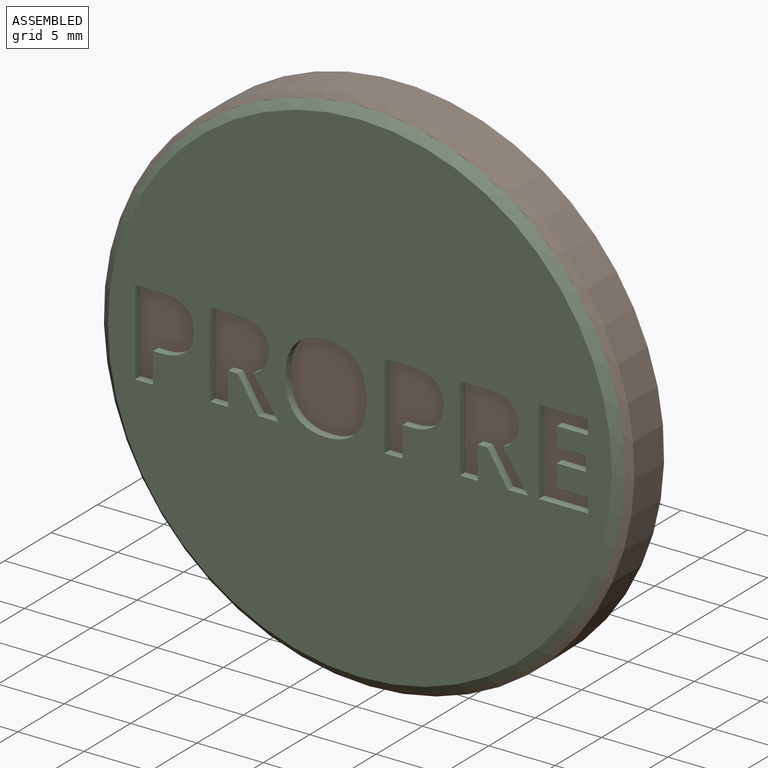
[diagram: assembled view]
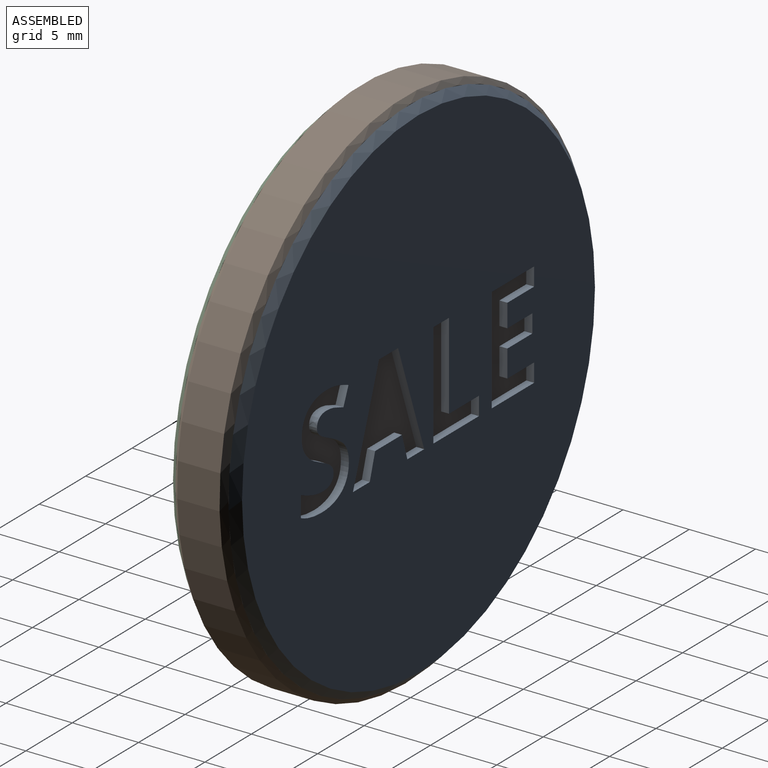
[diagram: assembled view, second angle]
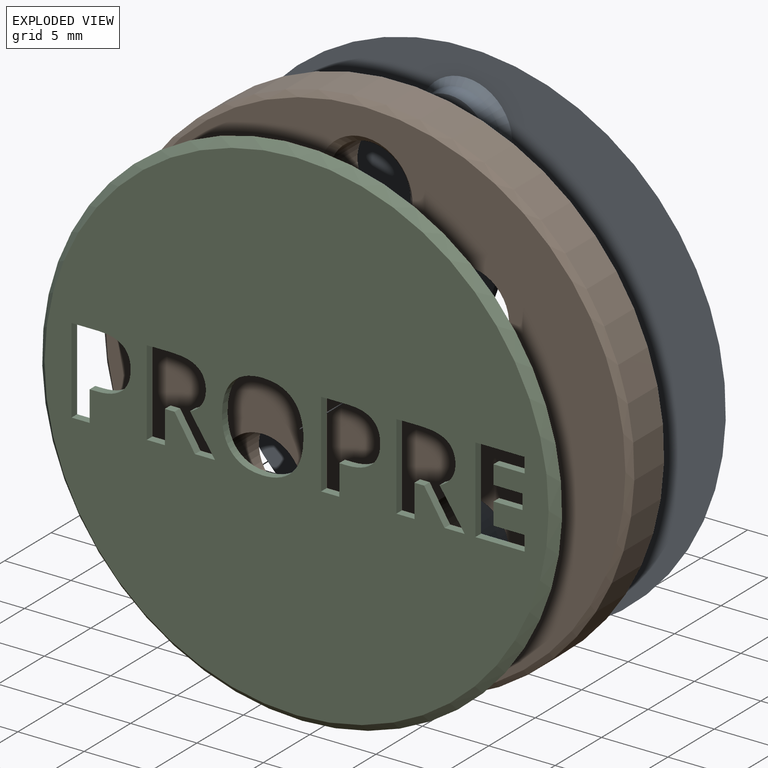
[diagram: exploded view]
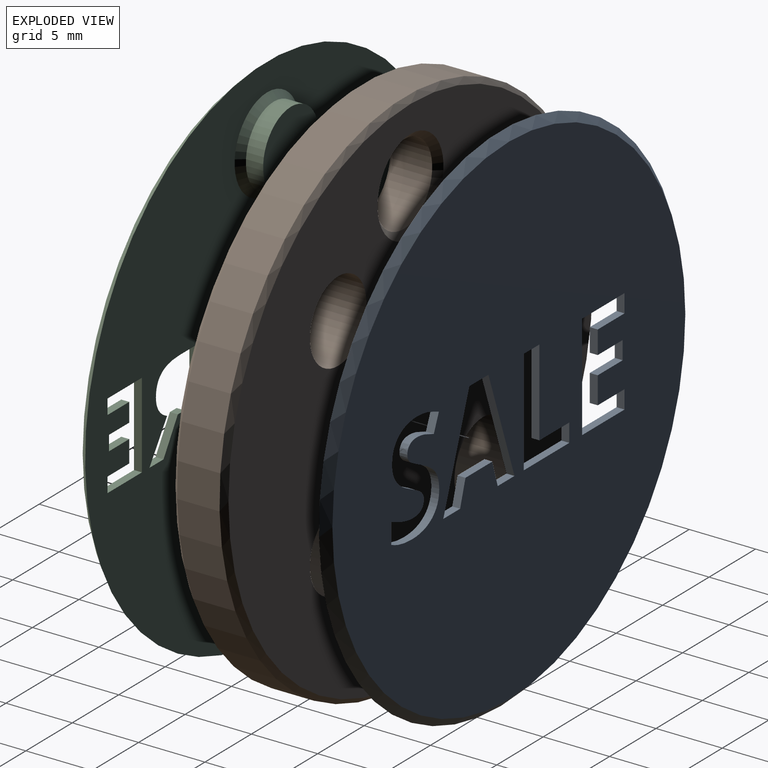
[diagram: exploded view, second angle]
ASSEMBLY  parts=3 mates=2
PART A: 63 faces, bbox 39.2x2.4x39.2 mm
  f0: plane 38x38mm, normal (0,-1,0), area 1035.4mm2, adj f2,f3,f4,f5,f6,f7,f8,f9
  f1: plane 39.2x39.2mm, normal (0,1,0), area 1031.2mm2, adj f2,f3,f4,f5,f6,f7,f8,f9
  f2: plane 1.89x0.6mm, normal (0.96,0,0.29), area 1.2mm2, adj f0,f1,f3,f9
  f3: plane 1.81x0.6mm, normal (0,0,1), area 1.1mm2, adj f0,f1,f2,f4
  f4: plane 7.97x2.81mm, normal (-0.94,0,-0.33), area 5.1mm2, adj f0,f1,f3,f5
  f5: plane 2.06x0.6mm, normal (0,0,-1), area 1.2mm2, adj f0,f1,f4,f6
  f6: plane 7.97x2.8mm, normal (0.94,0,-0.33), area 5.1mm2, adj f0,f1,f5,f7
  f7: plane 1.81x0.6mm, normal (0,0,1), area 1.1mm2, adj f0,f1,f6,f8
  f8: plane 1.89x0.6mm, normal (-0.96,0,0.29), area 1.2mm2, adj f0,f1,f7,f9
  f9: plane 2.89x0.6mm, normal (0,0,1), area 1.7mm2, adj f0,f1,f2,f8
  f10: plane 4.57x0.6mm, normal (0,0,1), area 2.7mm2, adj f0,f1,f11,f21
  f11: plane 1.39x0.6mm, normal (-1,0,0), area 0.8mm2, adj f0,f1,f10,f12
  f12: plane 2.89x0.6mm, normal (0,0,-1), area 1.7mm2, adj f0,f1,f11,f13
  f13: plane 2.05x0.6mm, normal (-1,0,0), area 1.2mm2, adj f0,f1,f12,f14
  f14: plane 2.69x0.6mm, normal (0,0,1), area 1.6mm2, adj f0,f1,f13,f15
  f15: plane 1.38x0.6mm, normal (-1,0,0), area 0.8mm2, adj f0,f1,f14,f16
  f16: plane 2.69x0.6mm, normal (0,0,-1), area 1.6mm2, adj f0,f1,f15,f17
  f17: plane 1.74x0.6mm, normal (-1,0,0), area 1mm2, adj f0,f1,f16,f18
  f18: plane 2.89x0.6mm, normal (0,0,1), area 1.7mm2, adj f0,f1,f17,f19
  f19: plane 1.38x0.6mm, normal (-1,0,0), area 0.8mm2, adj f0,f1,f18,f20
  f20: plane 4.57x0.6mm, normal (0,0,-1), area 2.7mm2, adj f0,f1,f19,f21
  f21: plane 7.93x0.6mm, normal (1,0,0), area 4.8mm2, adj f0,f1,f10,f20
  f22: plane 7.93x0.6mm, normal (1,0,0), area 4.8mm2, adj f0,f1,f23,f27
  f23: plane 4.9x0.6mm, normal (0,0,1), area 2.9mm2, adj f0,f1,f22,f24
  f24: plane 1.39x0.6mm, normal (-1,0,0), area 0.8mm2, adj f0,f1,f23,f25
  f25: plane 3.22x0.6mm, normal (0,0,-1), area 1.9mm2, adj f0,f1,f24,f26
  f26: plane 6.54x0.6mm, normal (-1,0,0), area 3.9mm2, adj f0,f1,f25,f27
  f27: plane 1.68x0.6mm, normal (0,0,-1), area 1mm2, adj f0,f1,f22,f26
  f28: extruded ~1.69x0.77mm, area 1.2mm2, adj f0,f1,f29,f55
  f29: extruded ~1.31x0.6mm, area 0.8mm2, adj f0,f1,f28,f30
  f30: extruded ~1.53x1.07mm, area 1.1mm2, adj f0,f1,f29,f31
  f31: extruded ~1.07x0.6mm, area 0.7mm2, adj f0,f1,f30,f32
  f32: extruded ~0.6x0.33mm, area 0.3mm2, adj f0,f1,f31,f33
  f33: extruded ~0.6x0.39mm, area 0.2mm2, adj f0,f1,f32,f34
  f34: extruded ~0.6x0.58mm, area 0.4mm2, adj f0,f1,f33,f35
  f35: extruded ~0.73x0.6mm, area 0.5mm2, adj f0,f1,f34,f36
  f36: extruded ~0.82x0.6mm, area 0.5mm2, adj f0,f1,f35,f37
  f37: extruded ~1.05x0.6mm, area 0.7mm2, adj f0,f1,f36,f38
  f38: plane 1.31x0.6mm, normal (-0.92,0,0.38), area 0.9mm2, adj f0,f1,f37,f39
  f39: extruded ~1.17x0.6mm, area 0.7mm2, adj f0,f1,f38,f40
  f40: extruded ~1.18x0.6mm, area 0.7mm2, adj f0,f1,f39,f41
  f41: extruded ~1.97x0.6mm, area 1.3mm2, adj f0,f1,f40,f42
  f42: extruded ~1.66x0.71mm, area 1.1mm2, adj f0,f1,f41,f43
  f43: extruded ~0.98x0.6mm, area 0.6mm2, adj f0,f1,f42,f44
  f44: extruded ~0.73x0.6mm, area 0.6mm2, adj f0,f1,f43,f45
  f45: extruded ~1.09x0.66mm, area 0.8mm2, adj f0,f1,f44,f46
  f46: extruded ~1.03x0.6mm, area 0.7mm2, adj f0,f1,f45,f47
  f47: extruded ~0.6x0.38mm, area 0.3mm2, adj f0,f1,f46,f48
  f48: extruded ~0.6x0.42mm, area 0.3mm2, adj f0,f1,f47,f49
  f49: extruded ~0.63x0.6mm, area 0.4mm2, adj f0,f1,f48,f50
  f50: extruded ~0.85x0.6mm, area 0.5mm2, adj f0,f1,f49,f51
  f51: extruded ~1.02x0.6mm, area 0.6mm2, adj f0,f1,f50,f52
  f52: extruded ~1.36x0.6mm, area 0.9mm2, adj f0,f1,f51,f53
  f53: plane 1.56x0.6mm, normal (1,0,0), area 0.9mm2, adj f0,f1,f52,f54
  f54: extruded ~2.25x0.6mm, area 1.4mm2, adj f0,f1,f53,f55
  f55: extruded ~2.15x0.62mm, area 1.4mm2, adj f0,f1,f28,f54
  f56: cylinder r=3mm len=6mm, axis (0,-1,0), area 24.5mm2, adj f57,f62
  f57: plane 6x6mm, normal (0,1,0), area 28.3mm2, adj f56
  f58: cylinder r=3mm len=6mm, axis (0,-1,0), area 24.5mm2, adj f59,f61
  f59: plane 6x6mm, normal (0,1,0), area 28.3mm2, adj f58
  f60: cone r=19mm half-angle=45deg, axis (0,1,0), area 102.9mm2, adj f0,f1
  f61: cone r=3.5mm half-angle=45deg, axis (0,-1,0), area 14.4mm2, adj f1,f58
  f62: cone r=3mm half-angle=45deg, axis (0,-1,0), area 14.4mm2, adj f1,f56
PART B: 15 faces, bbox 40x4x40 mm
  f0: plane 39.2x39.2mm, normal (0,-1,0), area 1010.8mm2, adj f2,f3,f4,f5,f10,f13,f14
  f1: plane 39.2x39.2mm, normal (0,1,0), area 1010.8mm2, adj f2,f3,f4,f5,f9,f11,f12
  f2: cylinder r=3.05mm len=6.1mm, axis (0,1,0), area 76.7mm2, adj f0,f1
  f3: cylinder r=3.05mm len=6.1mm, axis (0,1,0), area 76.7mm2, adj f0,f1
  f4: cylinder r=3.05mm len=6.1mm, axis (0,1,0), area 76.7mm2, adj f0,f1
  f5: cylinder r=3.05mm len=6.1mm, axis (0,1,0), area 76.7mm2, adj f0,f1
  f6: cylinder r=20mm len=40mm, axis (0,1,0), area 402.1mm2, adj f9,f10
  f7: cylinder r=3.05mm len=6.1mm, axis (0,-1,0), area 57.5mm2, adj f11,f13
  f8: cylinder r=3.05mm len=6.1mm, axis (0,-1,0), area 57.5mm2, adj f12,f14
  f9: cone r=20mm half-angle=45deg, axis (0,-1,0), area 70.4mm2, adj f1,f6
  f10: cone r=19.6mm half-angle=45deg, axis (0,1,0), area 70.4mm2, adj f0,f6
  f11: cone r=3.05mm half-angle=45deg, axis (0,1,0), area 14.7mm2, adj f1,f7
  f12: cone r=3.55mm half-angle=45deg, axis (0,1,0), area 14.7mm2, adj f1,f8
  f13: cone r=3.55mm half-angle=45deg, axis (0,-1,0), area 14.7mm2, adj f0,f7
  f14: cone r=3.05mm half-angle=45deg, axis (0,-1,0), area 14.7mm2, adj f0,f8
PART C: 71 faces, bbox 39.2x2.4x39.2 mm
  f0: plane 38x38mm, normal (0,-1,0), area 998.4mm2, adj f2,f3,f4,f5,f6,f7,f8,f9
  f1: plane 39.2x39.2mm, normal (0,1,0), area 994.2mm2, adj f2,f3,f4,f5,f6,f7,f8,f9
  f2: plane 1.37x0.6mm, normal (0,0,1), area 0.8mm2, adj f0,f1,f3,f13
  f3: plane 6.45x0.6mm, normal (1,0,0), area 3.9mm2, adj f0,f1,f2,f4
  f4: plane 1.88x0.6mm, normal (0,0,-1), area 1.1mm2, adj f0,f1,f3,f5
  f5: extruded ~1.94x0.6mm, area 1.2mm2, adj f0,f1,f4,f6
  f6: extruded ~1.45x0.63mm, area 1mm2, adj f0,f1,f5,f7
  f7: extruded ~1.01x0.6mm, area 0.6mm2, adj f0,f1,f6,f8
  f8: extruded ~0.89x0.69mm, area 0.7mm2, adj f0,f1,f7,f9
  f9: plane 2.81x1.9mm, normal (-0.83,0,-0.56), area 2mm2, adj f0,f1,f8,f10
  f10: plane 1.52x0.6mm, normal (0,0,1), area 0.9mm2, adj f0,f1,f9,f11
  f11: plane 2.47x1.54mm, normal (0.85,0,0.53), area 1.7mm2, adj f0,f1,f10,f12
  f12: plane 0.73x0.6mm, normal (0,0,1), area 0.4mm2, adj f0,f1,f11,f13
  f13: plane 2.47x0.6mm, normal (-1,0,0), area 1.5mm2, adj f0,f1,f2,f12
  f14: extruded ~1.85x0.6mm, area 1.2mm2, adj f0,f1,f15,f22
  f15: plane 0.6x0.59mm, normal (0,0,1), area 0.4mm2, adj f0,f1,f14,f16
  f16: plane 2.29x0.6mm, normal (-1,0,0), area 1.4mm2, adj f0,f1,f15,f17
  f17: plane 1.37x0.6mm, normal (0,0,1), area 0.8mm2, adj f0,f1,f16,f18
  f18: plane 6.45x0.6mm, normal (1,0,0), area 3.9mm2, adj f0,f1,f17,f19
  f19: plane 2.06x0.6mm, normal (0,0,-1), area 1.2mm2, adj f0,f1,f18,f20
  f20: extruded ~1.78x0.6mm, area 1.1mm2, adj f0,f1,f19,f21
  f21: extruded ~1.51x0.61mm, area 1mm2, adj f0,f1,f20,f22
  f22: extruded ~1.59x0.65mm, area 1.1mm2, adj f0,f1,f14,f21
  f23: extruded ~2.46x0.79mm, area 1.6mm2, adj f0,f1,f24,f30
  f24: extruded ~2.46x0.79mm, area 1.6mm2, adj f0,f1,f23,f25
  f25: extruded ~2.27x0.86mm, area 1.5mm2, adj f0,f1,f24,f26
  f26: extruded ~2.28x0.85mm, area 1.5mm2, adj f0,f1,f25,f27
  f27: extruded ~2.46x0.8mm, area 1.6mm2, adj f0,f1,f26,f28
  f28: extruded ~2.47x0.79mm, area 1.6mm2, adj f0,f1,f27,f29
  f29: extruded ~2.27x0.86mm, area 1.5mm2, adj f0,f1,f28,f30
  f30: extruded ~2.27x0.86mm, area 1.5mm2, adj f0,f1,f23,f29
  f31: plane 1.37x0.6mm, normal (0,0,1), area 0.8mm2, adj f0,f1,f32,f42
  f32: plane 6.45x0.6mm, normal (1,0,0), area 3.9mm2, adj f0,f1,f31,f33
  f33: plane 1.88x0.6mm, normal (0,0,-1), area 1.1mm2, adj f0,f1,f32,f34
  f34: extruded ~1.94x0.6mm, area 1.2mm2, adj f0,f1,f33,f35
  f35: extruded ~1.45x0.63mm, area 1mm2, adj f0,f1,f34,f36
  f36: extruded ~1.01x0.6mm, area 0.6mm2, adj f0,f1,f35,f37
  f37: extruded ~0.89x0.69mm, area 0.7mm2, adj f0,f1,f36,f38
  f38: plane 2.81x1.9mm, normal (-0.83,0,-0.56), area 2mm2, adj f0,f1,f37,f39
  f39: plane 1.52x0.6mm, normal (0,0,1), area 0.9mm2, adj f0,f1,f38,f40
  f40: plane 2.47x1.54mm, normal (0.85,0,0.53), area 1.7mm2, adj f0,f1,f39,f41
  f41: plane 0.73x0.6mm, normal (0,0,1), area 0.4mm2, adj f0,f1,f40,f42
  f42: plane 2.47x0.6mm, normal (-1,0,0), area 1.5mm2, adj f0,f1,f31,f41
  f43: extruded ~1.85x0.6mm, area 1.2mm2, adj f0,f1,f44,f51
  f44: plane 0.6x0.59mm, normal (0,0,1), area 0.4mm2, adj f0,f1,f43,f45
  f45: plane 2.29x0.6mm, normal (-1,0,0), area 1.4mm2, adj f0,f1,f44,f46
  f46: plane 1.37x0.6mm, normal (0,0,1), area 0.8mm2, adj f0,f1,f45,f47
  f47: plane 6.45x0.6mm, normal (1,0,0), area 3.9mm2, adj f0,f1,f46,f48
  f48: plane 2.06x0.6mm, normal (0,0,-1), area 1.2mm2, adj f0,f1,f47,f49
  f49: extruded ~1.78x0.6mm, area 1.1mm2, adj f0,f1,f48,f50
  f50: extruded ~1.51x0.61mm, area 1mm2, adj f0,f1,f49,f51
  f51: extruded ~1.59x0.65mm, area 1.1mm2, adj f0,f1,f43,f50
  f52: plane 3.71x0.6mm, normal (0,0,1), area 2.2mm2, adj f0,f1,f53,f63
  f53: plane 1.13x0.6mm, normal (-1,0,0), area 0.7mm2, adj f0,f1,f52,f54
  f54: plane 2.34x0.6mm, normal (0,0,-1), area 1.4mm2, adj f0,f1,f53,f55
  f55: plane 1.66x0.6mm, normal (-1,0,0), area 1mm2, adj f0,f1,f54,f56
  f56: plane 2.18x0.6mm, normal (0,0,1), area 1.3mm2, adj f0,f1,f55,f57
  f57: plane 1.12x0.6mm, normal (-1,0,0), area 0.7mm2, adj f0,f1,f56,f58
  f58: plane 2.18x0.6mm, normal (0,0,-1), area 1.3mm2, adj f0,f1,f57,f59
  f59: plane 1.42x0.6mm, normal (-1,0,0), area 0.8mm2, adj f0,f1,f58,f60
  f60: plane 2.34x0.6mm, normal (0,0,1), area 1.4mm2, adj f0,f1,f59,f61
  f61: plane 1.12x0.6mm, normal (-1,0,0), area 0.7mm2, adj f0,f1,f60,f62
  f62: plane 3.71x0.6mm, normal (0,0,-1), area 2.2mm2, adj f0,f1,f61,f63
  f63: plane 6.45x0.6mm, normal (1,0,0), area 3.9mm2, adj f0,f1,f52,f62
  f64: cylinder r=3mm len=6mm, axis (0,-1,0), area 24.5mm2, adj f65,f70
  f65: plane 6x6mm, normal (0,1,0), area 28.3mm2, adj f64
  f66: cylinder r=3mm len=6mm, axis (0,-1,0), area 24.5mm2, adj f67,f69
  f67: plane 6x6mm, normal (0,1,0), area 28.3mm2, adj f66
  f68: cone r=19mm half-angle=45deg, axis (0,1,0), area 102.9mm2, adj f0,f1
  f69: cone r=3.5mm half-angle=45deg, axis (0,-1,0), area 14.4mm2, adj f1,f66
  f70: cone r=3mm half-angle=45deg, axis (0,-1,0), area 14.4mm2, adj f1,f64
PLACE A rot(axis=(0,0,1),180deg) t=(0,0,0)mm
PLACE B at identity fixed
PLACE C t=(0,-4,0)mm
MATE fastened B.f6 <-> A.f60  axis (0,1,0) through (0,0,0)mm
MATE fastened B.f6 <-> C.f68  axis (0,-1,0) through (0,-4,0)mm
